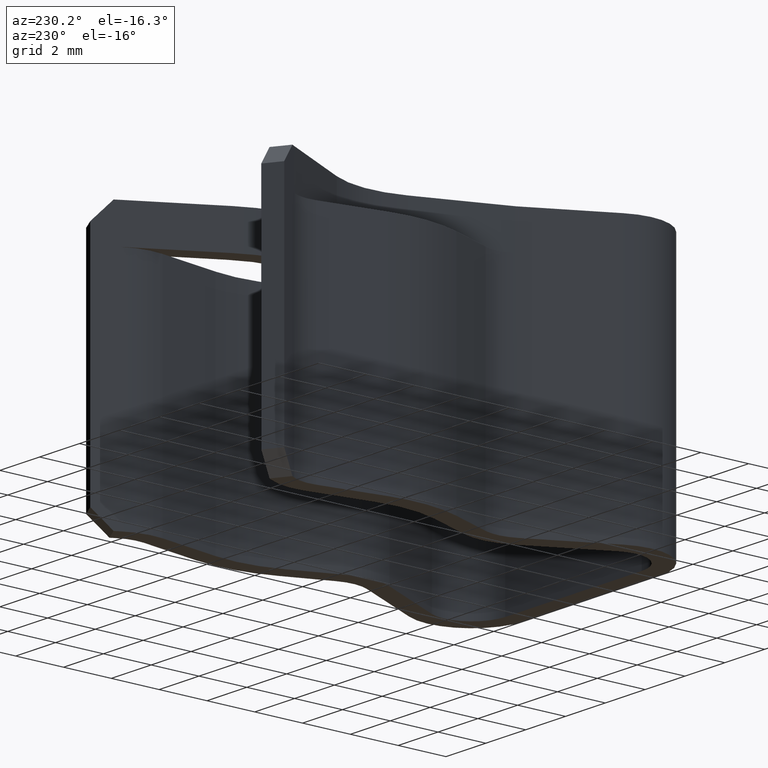
[diagram: clean part render]
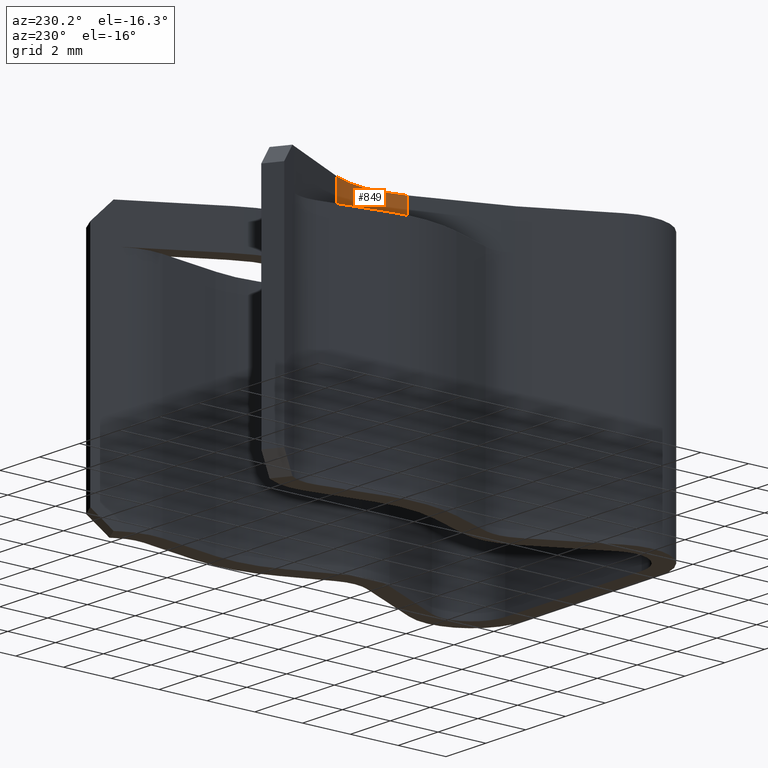
[diagram: same view with one face highlighted and labeled with its STEP entity id]
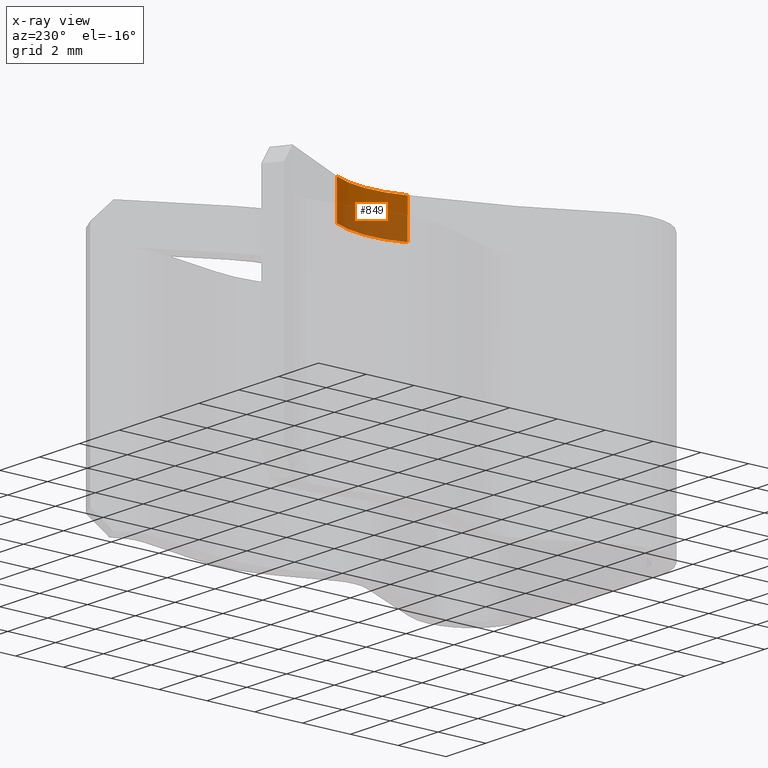
[diagram: x-ray of the same camera — body ghosted, the highlighted face saturated]
A machine part, auxiliary view. The second image highlights one B-rep face of the part: STEP entity #849.
The next image is the same camera in x-ray: the body ghosted, the highlighted face saturated — about 51% of this face is hidden behind the body in this view.
In plain terms, the highlighted cylindrical surface (partial cylindrical patch) has radius 3.8354 mm, axis along (-0, -0, -1).
Its self-contained STEP definition (entity closure, byte-faithful):
#8 = VECTOR ( 'NONE', #2434, 39.37007874015748100 ) ;
#65 = VECTOR ( 'NONE', #656, 39.37007874015748100 ) ;
#320 = ORIENTED_EDGE ( 'NONE', *, *, #820, .T. ) ;
#347 = AXIS2_PLACEMENT_3D ( 'NONE', #2210, #872, #1333 ) ;
#592 = CARTESIAN_POINT ( 'NONE',  ( -0.1074401119664378900, 0.4793109679407596100, 0.06200000000000000000 ) ) ;
#608 = CIRCLE ( 'NONE', #1591, 0.1510000000000034600 ) ;
#656 = DIRECTION ( 'NONE',  ( -0.0000000000000000000, -0.0000000000000000000, -1.000000000000000000 ) ) ;
#683 = CARTESIAN_POINT ( 'NONE',  ( -0.09819433680469917500, 0.3551140299720532100, 0.0000000000000000000 ) ) ;
#820 = EDGE_CURVE ( 'NONE', #1111, #2294, #608, .T. ) ;
#849 = ADVANCED_FACE ( 'NONE', ( #936 ), #1884, .F. ) ;
#872 = DIRECTION ( 'NONE',  ( -0.0000000000000000000, -0.0000000000000000000, -1.000000000000000000 ) ) ;
#936 = FACE_OUTER_BOUND ( 'NONE', #1344, .T. ) ;
#981 = CARTESIAN_POINT ( 'NONE',  ( -0.1074401119664378900, 0.4793109679407596100, 0.06200000000000000000 ) ) ;
#1090 = LINE ( 'NONE', #592, #65 ) ;
#1100 = CARTESIAN_POINT ( 'NONE',  ( -0.09819433680469917500, 0.3551140299720532100, 0.06200000000000000000 ) ) ;
#1111 = VERTEX_POINT ( 'NONE', #1506 ) ;
#1211 = DIRECTION ( 'NONE',  ( -1.000000000000000000, 0.0000000000000000000, 0.0000000000000000000 ) ) ;
#1254 = DIRECTION ( 'NONE',  ( -1.000000000000000000, 0.0000000000000000000, 0.0000000000000000000 ) ) ;
#1280 = EDGE_CURVE ( 'NONE', #1625, #1111, #1090, .T. ) ;
#1333 = DIRECTION ( 'NONE',  ( -1.000000000000000000, 0.0000000000000000000, 0.0000000000000000000 ) ) ;
#1344 = EDGE_LOOP ( 'NONE', ( #320, #1441, #1680, #2130 ) ) ;
#1350 = DIRECTION ( 'NONE',  ( -0.0000000000000000000, -0.0000000000000000000, -1.000000000000000000 ) ) ;
#1441 = ORIENTED_EDGE ( 'NONE', *, *, #2409, .F. ) ;
#1473 = CARTESIAN_POINT ( 'NONE',  ( -0.2400000000000034600, 0.4069999999999998100, 0.0000000000000000000 ) ) ;
#1475 = LINE ( 'NONE', #1100, #8 ) ;
#1506 = CARTESIAN_POINT ( 'NONE',  ( -0.1074401119664378900, 0.4793109679407596100, 0.0000000000000000000 ) ) ;
#1522 = EDGE_CURVE ( 'NONE', #1625, #2256, #1614, .T. ) ;
#1542 = CARTESIAN_POINT ( 'NONE',  ( -0.2400000000000034600, 0.4069999999999998100, 0.06200000000000000000 ) ) ;
#1591 = AXIS2_PLACEMENT_3D ( 'NONE', #1473, #1985, #1254 ) ;
#1614 = CIRCLE ( 'NONE', #347, 0.1510000000000034600 ) ;
#1625 = VERTEX_POINT ( 'NONE', #981 ) ;
#1680 = ORIENTED_EDGE ( 'NONE', *, *, #1522, .F. ) ;
#1884 = CYLINDRICAL_SURFACE ( 'NONE', #2100, 0.1510000000000034600 ) ;
#1985 = DIRECTION ( 'NONE',  ( -0.0000000000000000000, -0.0000000000000000000, -1.000000000000000000 ) ) ;
#2100 = AXIS2_PLACEMENT_3D ( 'NONE', #1542, #1350, #1211 ) ;
#2130 = ORIENTED_EDGE ( 'NONE', *, *, #1280, .T. ) ;
#2191 = CARTESIAN_POINT ( 'NONE',  ( -0.09819433680469917500, 0.3551140299720532100, 0.06200000000000000000 ) ) ;
#2210 = CARTESIAN_POINT ( 'NONE',  ( -0.2400000000000034600, 0.4069999999999998100, 0.06200000000000000000 ) ) ;
#2256 = VERTEX_POINT ( 'NONE', #2191 ) ;
#2294 = VERTEX_POINT ( 'NONE', #683 ) ;
#2409 = EDGE_CURVE ( 'NONE', #2256, #2294, #1475, .T. ) ;
#2434 = DIRECTION ( 'NONE',  ( -0.0000000000000000000, -0.0000000000000000000, -1.000000000000000000 ) ) ;